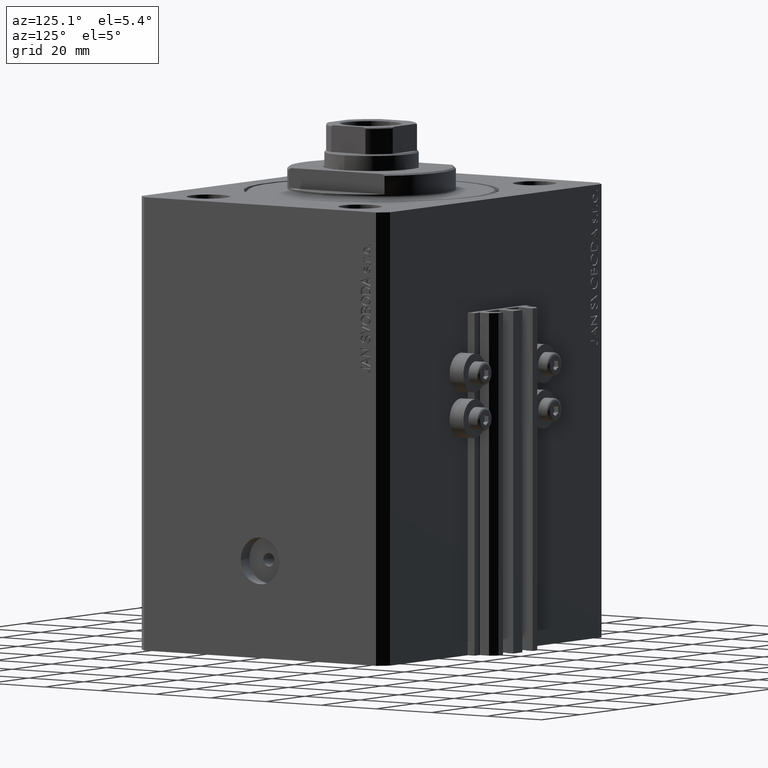
[diagram: clean part render]
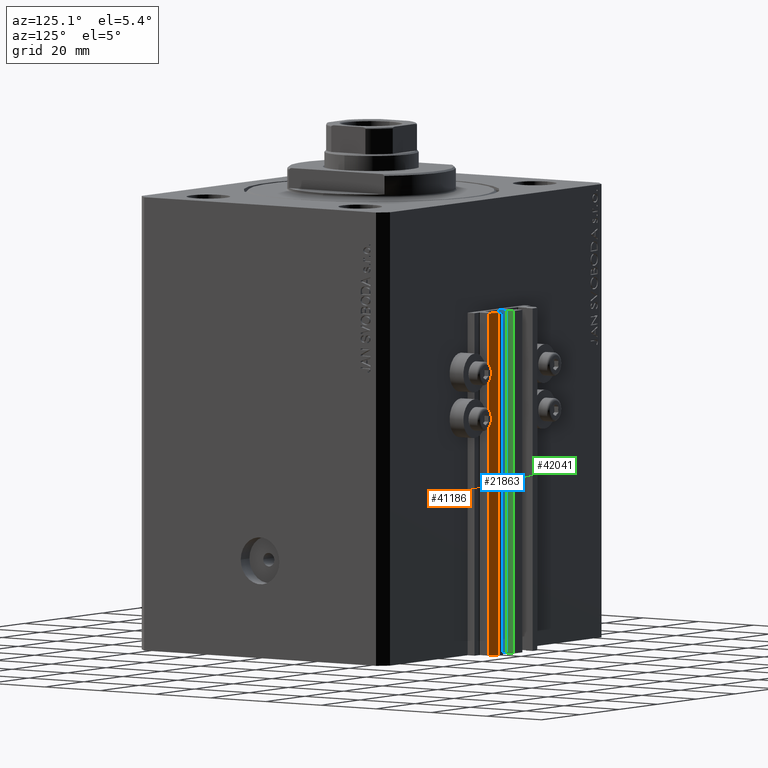
[diagram: same view with three faces highlighted in distinct colors, each labeled with its STEP entity id]
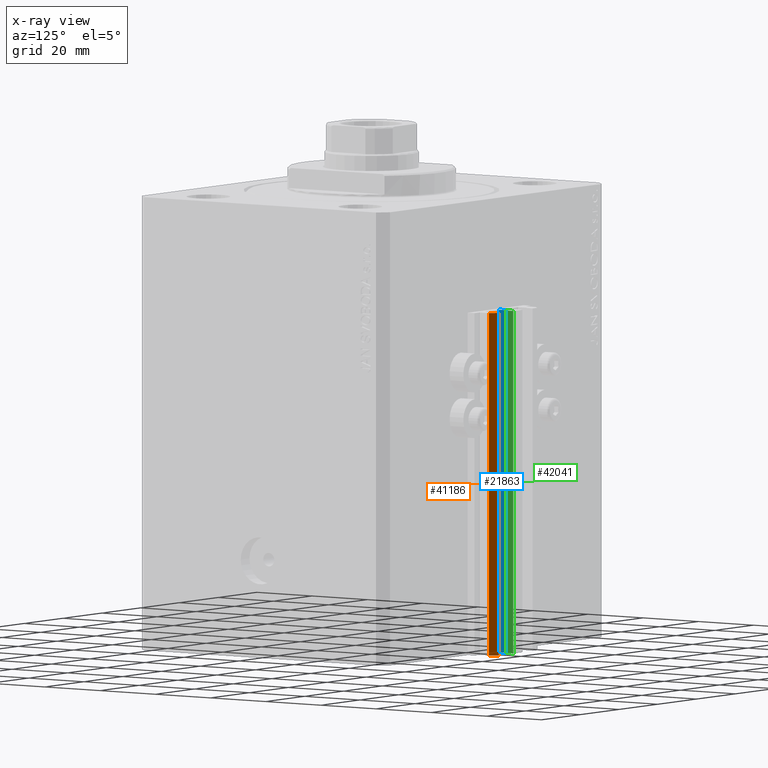
[diagram: x-ray of the same camera — body ghosted, the three highlighted faces saturated]
A machine part, auxiliary view with three faces highlighted in distinct colors.
The next image is the same camera in x-ray (body ghosted, the three faces saturated) — at least one of them is partly hidden behind the body in this view.
Their STEP definitions:

[orange] entity #41186 — the highlighted planar face has unit normal (0.7071, 0.7071, 0).
#2713 = VECTOR ( 'NONE', #42566, 1000.000000000000114 ) ;
#3380 = LINE ( 'NONE', #35711, #33276 ) ;
#3863 = VERTEX_POINT ( 'NONE', #7867 ) ;
#5561 = DIRECTION ( 'NONE',  ( 0.7071067811865475727, 0.7071067811865475727, -0.000000000000000000 ) ) ;
#6525 = EDGE_CURVE ( 'NONE', #36884, #12004, #29563, .T. ) ;
#7867 = CARTESIAN_POINT ( 'NONE',  ( 12.00000000000000000, 51.00000000000000711, -33.00000000000000000 ) ) ;
#8079 = ORIENTED_EDGE ( 'NONE', *, *, #6525, .T. ) ;
#9173 = FACE_OUTER_BOUND ( 'NONE', #34873, .T. ) ;
#9314 = VERTEX_POINT ( 'NONE', #12670 ) ;
#12004 = VERTEX_POINT ( 'NONE', #18261 ) ;
#12670 = CARTESIAN_POINT ( 'NONE',  ( 12.00000000000000000, 51.00000000000000711, -135.0000000000000000 ) ) ;
#13327 = VECTOR ( 'NONE', #41112, 1000.000000000000000 ) ;
#14745 = DIRECTION ( 'NONE',  ( 0.000000000000000000, 0.000000000000000000, 1.000000000000000000 ) ) ;
#15526 = LINE ( 'NONE', #36813, #13327 ) ;
#17528 = ORIENTED_EDGE ( 'NONE', *, *, #17916, .F. ) ;
#17603 = ORIENTED_EDGE ( 'NONE', *, *, #25289, .T. ) ;
#17916 = EDGE_CURVE ( 'NONE', #9314, #3863, #15526, .T. ) ;
#18261 = CARTESIAN_POINT ( 'NONE',  ( 9.999999999999998224, 53.00000000000000711, -33.00000000000000000 ) ) ;
#20277 = EDGE_CURVE ( 'NONE', #3863, #12004, #3380, .T. ) ;
#20789 = LINE ( 'NONE', #28431, #2713 ) ;
#21495 = VECTOR ( 'NONE', #14745, 1000.000000000000000 ) ;
#24465 = DIRECTION ( 'NONE',  ( -0.7071067811865474617, 0.7071067811865474617, 0.000000000000000000 ) ) ;
#25289 = EDGE_CURVE ( 'NONE', #9314, #36884, #20789, .T. ) ;
#28431 = CARTESIAN_POINT ( 'NONE',  ( 12.00000000000000000, 51.00000000000000711, -135.0000000000000000 ) ) ;
#29318 = AXIS2_PLACEMENT_3D ( 'NONE', #38353, #5561, #33808 ) ;
#29563 = LINE ( 'NONE', #30031, #21495 ) ;
#30031 = CARTESIAN_POINT ( 'NONE',  ( 9.999999999999998224, 53.00000000000000711, -135.0000000000000000 ) ) ;
#30682 = PLANE ( 'NONE',  #29318 ) ;
#33276 = VECTOR ( 'NONE', #24465, 1000.000000000000114 ) ;
#33808 = DIRECTION ( 'NONE',  ( -0.7071067811865474617, 0.7071067811865474617, 0.000000000000000000 ) ) ;
#34873 = EDGE_LOOP ( 'NONE', ( #38681, #17528, #17603, #8079 ) ) ;
#35711 = CARTESIAN_POINT ( 'NONE',  ( 12.00000000000000000, 51.00000000000000711, -33.00000000000000000 ) ) ;
#36813 = CARTESIAN_POINT ( 'NONE',  ( 12.00000000000000000, 51.00000000000000711, -135.0000000000000000 ) ) ;
#36884 = VERTEX_POINT ( 'NONE', #44571 ) ;
#38353 = CARTESIAN_POINT ( 'NONE',  ( 12.00000000000000000, 51.00000000000000711, -135.0000000000000000 ) ) ;
#38681 = ORIENTED_EDGE ( 'NONE', *, *, #20277, .F. ) ;
#41112 = DIRECTION ( 'NONE',  ( 0.000000000000000000, 0.000000000000000000, 1.000000000000000000 ) ) ;
#41186 = ADVANCED_FACE ( 'NONE', ( #9173 ), #30682, .T. ) ;
#42566 = DIRECTION ( 'NONE',  ( -0.7071067811865474617, 0.7071067811865474617, 0.000000000000000000 ) ) ;
#44571 = CARTESIAN_POINT ( 'NONE',  ( 9.999999999999998224, 53.00000000000000711, -135.0000000000000000 ) ) ;

[blue] entity #21863 — the highlighted planar face has unit normal (1, 0, 0).
#651 = DIRECTION ( 'NONE',  ( 0.000000000000000000, 0.000000000000000000, -1.000000000000000000 ) ) ;
#2977 = EDGE_CURVE ( 'NONE', #3621, #16669, #31738, .T. ) ;
#3621 = VERTEX_POINT ( 'NONE', #44224 ) ;
#6875 = VECTOR ( 'NONE', #46335, 1000.000000000000000 ) ;
#8082 = CARTESIAN_POINT ( 'NONE',  ( 1.600000000000000533, 47.19999999999998863, -135.0000000000000000 ) ) ;
#8948 = VERTEX_POINT ( 'NONE', #15381 ) ;
#11383 = EDGE_CURVE ( 'NONE', #16669, #8948, #15498, .T. ) ;
#11429 = LINE ( 'NONE', #8082, #37664 ) ;
#15381 = CARTESIAN_POINT ( 'NONE',  ( 1.600000000000000533, 50.39999999999999858, -33.00000000000000000 ) ) ;
#15397 = ORIENTED_EDGE ( 'NONE', *, *, #44311, .T. ) ;
#15498 = LINE ( 'NONE', #30078, #44468 ) ;
#16669 = VERTEX_POINT ( 'NONE', #44382 ) ;
#17179 = EDGE_LOOP ( 'NONE', ( #30672, #44110, #21013, #15397 ) ) ;
#20503 = CARTESIAN_POINT ( 'NONE',  ( 1.599999999999997868, 47.19999999999998863, -135.0000000000000000 ) ) ;
#21013 = ORIENTED_EDGE ( 'NONE', *, *, #35654, .T. ) ;
#21778 = VECTOR ( 'NONE', #42698, 1000.000000000000000 ) ;
#21863 = ADVANCED_FACE ( 'NONE', ( #22701 ), #26724, .T. ) ;
#22701 = FACE_OUTER_BOUND ( 'NONE', #17179, .T. ) ;
#26007 = DIRECTION ( 'NONE',  ( 0.000000000000000000, 1.000000000000000000, 0.000000000000000000 ) ) ;
#26724 = PLANE ( 'NONE',  #45526 ) ;
#26958 = DIRECTION ( 'NONE',  ( 1.000000000000000000, 0.000000000000000000, 0.000000000000000000 ) ) ;
#28090 = LINE ( 'NONE', #45573, #21778 ) ;
#30078 = CARTESIAN_POINT ( 'NONE',  ( 1.600000000000000533, 47.19999999999998863, -33.00000000000000000 ) ) ;
#30672 = ORIENTED_EDGE ( 'NONE', *, *, #11383, .F. ) ;
#31738 = LINE ( 'NONE', #20503, #6875 ) ;
#33225 = CARTESIAN_POINT ( 'NONE',  ( 1.600000000000000533, 47.19999999999998863, -135.0000000000000000 ) ) ;
#33480 = VERTEX_POINT ( 'NONE', #41709 ) ;
#35654 = EDGE_CURVE ( 'NONE', #3621, #33480, #11429, .T. ) ;
#36789 = DIRECTION ( 'NONE',  ( 0.000000000000000000, 1.000000000000000000, 0.000000000000000000 ) ) ;
#37664 = VECTOR ( 'NONE', #36789, 1000.000000000000000 ) ;
#41709 = CARTESIAN_POINT ( 'NONE',  ( 1.600000000000000533, 50.39999999999999858, -135.0000000000000000 ) ) ;
#42698 = DIRECTION ( 'NONE',  ( 0.000000000000000000, 0.000000000000000000, 1.000000000000000000 ) ) ;
#44110 = ORIENTED_EDGE ( 'NONE', *, *, #2977, .F. ) ;
#44224 = CARTESIAN_POINT ( 'NONE',  ( 1.599999999999997868, 47.19999999999998863, -135.0000000000000000 ) ) ;
#44311 = EDGE_CURVE ( 'NONE', #33480, #8948, #28090, .T. ) ;
#44382 = CARTESIAN_POINT ( 'NONE',  ( 1.599999999999997868, 47.19999999999998863, -33.00000000000000000 ) ) ;
#44468 = VECTOR ( 'NONE', #26007, 1000.000000000000000 ) ;
#45526 = AXIS2_PLACEMENT_3D ( 'NONE', #33225, #26958, #651 ) ;
#45573 = CARTESIAN_POINT ( 'NONE',  ( 1.600000000000000533, 50.39999999999999858, -135.0000000000000000 ) ) ;
#46335 = DIRECTION ( 'NONE',  ( 0.000000000000000000, 0.000000000000000000, 1.000000000000000000 ) ) ;

[green] entity #42041 — the highlighted planar face has unit normal (1, 0, 0).
#1096 = CARTESIAN_POINT ( 'NONE',  ( 2.349999999999999645, 50.60000000000000142, -135.0000000000000000 ) ) ;
#1134 = VECTOR ( 'NONE', #34018, 1000.000000000000000 ) ;
#6803 = VERTEX_POINT ( 'NONE', #31435 ) ;
#7189 = AXIS2_PLACEMENT_3D ( 'NONE', #29758, #44124, #22826 ) ;
#7217 = VECTOR ( 'NONE', #22709, 1000.000000000000000 ) ;
#7282 = VECTOR ( 'NONE', #12599, 1000.000000000000000 ) ;
#12599 = DIRECTION ( 'NONE',  ( 0.000000000000000000, 1.000000000000000000, 0.000000000000000000 ) ) ;
#13331 = CARTESIAN_POINT ( 'NONE',  ( 2.349999999999999645, 53.00000000000000000, -135.0000000000000000 ) ) ;
#13332 = CARTESIAN_POINT ( 'NONE',  ( 2.349999999999999645, 53.00000000000000000, -33.00000000000000000 ) ) ;
#15723 = ORIENTED_EDGE ( 'NONE', *, *, #23408, .F. ) ;
#16080 = CARTESIAN_POINT ( 'NONE',  ( 2.349999999999999645, 53.00000000000000000, -135.0000000000000000 ) ) ;
#17913 = EDGE_CURVE ( 'NONE', #34799, #6803, #19592, .T. ) ;
#19592 = LINE ( 'NONE', #40407, #7217 ) ;
#19777 = LINE ( 'NONE', #45361, #7282 ) ;
#21340 = LINE ( 'NONE', #43568, #22834 ) ;
#22709 = DIRECTION ( 'NONE',  ( 0.000000000000000000, 0.000000000000000000, 1.000000000000000000 ) ) ;
#22793 = LINE ( 'NONE', #16080, #1134 ) ;
#22826 = DIRECTION ( 'NONE',  ( 0.000000000000000000, 0.000000000000000000, -1.000000000000000000 ) ) ;
#22834 = VECTOR ( 'NONE', #36404, 1000.000000000000000 ) ;
#23408 = EDGE_CURVE ( 'NONE', #6803, #31878, #19777, .T. ) ;
#23949 = EDGE_CURVE ( 'NONE', #31002, #31878, #22793, .T. ) ;
#25368 = EDGE_LOOP ( 'NONE', ( #15723, #31105, #41284, #37872 ) ) ;
#25698 = PLANE ( 'NONE',  #7189 ) ;
#27077 = EDGE_CURVE ( 'NONE', #34799, #31002, #21340, .T. ) ;
#29758 = CARTESIAN_POINT ( 'NONE',  ( 2.349999999999999645, 50.60000000000000142, -135.0000000000000000 ) ) ;
#31002 = VERTEX_POINT ( 'NONE', #13331 ) ;
#31105 = ORIENTED_EDGE ( 'NONE', *, *, #17913, .F. ) ;
#31435 = CARTESIAN_POINT ( 'NONE',  ( 2.349999999999999645, 50.60000000000000142, -33.00000000000000000 ) ) ;
#31878 = VERTEX_POINT ( 'NONE', #13332 ) ;
#34018 = DIRECTION ( 'NONE',  ( 0.000000000000000000, 0.000000000000000000, 1.000000000000000000 ) ) ;
#34799 = VERTEX_POINT ( 'NONE', #1096 ) ;
#36404 = DIRECTION ( 'NONE',  ( 0.000000000000000000, 1.000000000000000000, 0.000000000000000000 ) ) ;
#36468 = FACE_OUTER_BOUND ( 'NONE', #25368, .T. ) ;
#37872 = ORIENTED_EDGE ( 'NONE', *, *, #23949, .T. ) ;
#40407 = CARTESIAN_POINT ( 'NONE',  ( 2.349999999999999645, 50.60000000000000142, -135.0000000000000000 ) ) ;
#41284 = ORIENTED_EDGE ( 'NONE', *, *, #27077, .T. ) ;
#42041 = ADVANCED_FACE ( 'NONE', ( #36468 ), #25698, .T. ) ;
#43568 = CARTESIAN_POINT ( 'NONE',  ( 2.349999999999999645, 50.60000000000000142, -135.0000000000000000 ) ) ;
#44124 = DIRECTION ( 'NONE',  ( 1.000000000000000000, 0.000000000000000000, 0.000000000000000000 ) ) ;
#45361 = CARTESIAN_POINT ( 'NONE',  ( 2.349999999999999645, 50.60000000000000142, -33.00000000000000000 ) ) ;